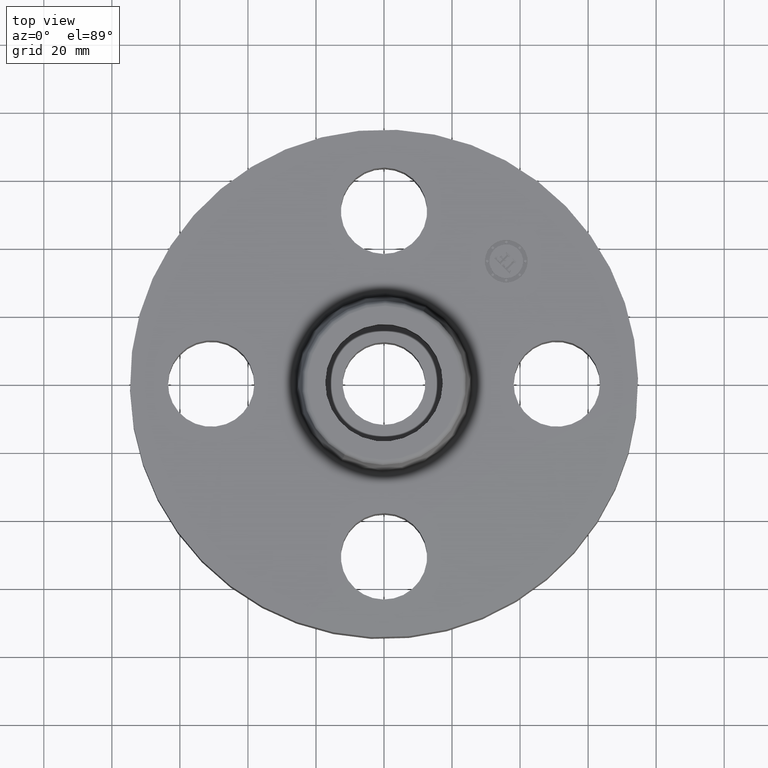
[diagram: clean part render]
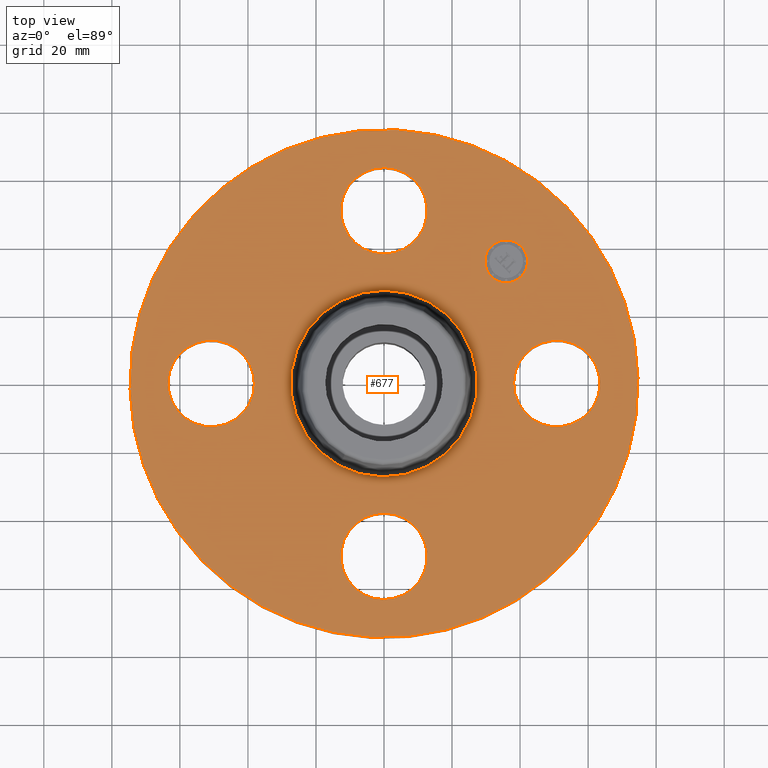
[diagram: same view with one face highlighted and labeled with its STEP entity id]
A machine part, top view. The second image highlights one B-rep face of the part: STEP entity #677.
In plain terms, the highlighted planar face has unit normal (0, 0, -1).
Its self-contained STEP definition (entity closure, byte-faithful):
#38=AXIS2_PLACEMENT_3D('Plane Axis2P3D',#35,#36,#37) ;
#234=AXIS2_PLACEMENT_3D('Circle Axis2P3D',#232,#233,$) ;
#253=AXIS2_PLACEMENT_3D('Circle Axis2P3D',#251,#252,$) ;
#270=AXIS2_PLACEMENT_3D('Circle Axis2P3D',#268,#269,$) ;
#305=AXIS2_PLACEMENT_3D('Circle Axis2P3D',#303,#304,$) ;
#455=AXIS2_PLACEMENT_3D('Circle Axis2P3D',#453,#454,$) ;
#467=AXIS2_PLACEMENT_3D('Circle Axis2P3D',#465,#466,$) ;
#498=AXIS2_PLACEMENT_3D('Circle Axis2P3D',#496,#497,$) ;
#510=AXIS2_PLACEMENT_3D('Circle Axis2P3D',#508,#509,$) ;
#541=AXIS2_PLACEMENT_3D('Circle Axis2P3D',#539,#540,$) ;
#553=AXIS2_PLACEMENT_3D('Circle Axis2P3D',#551,#552,$) ;
#584=AXIS2_PLACEMENT_3D('Circle Axis2P3D',#582,#583,$) ;
#596=AXIS2_PLACEMENT_3D('Circle Axis2P3D',#594,#595,$) ;
#661=AXIS2_PLACEMENT_3D('Circle Axis2P3D',#659,#660,$) ;
#670=AXIS2_PLACEMENT_3D('Circle Axis2P3D',#668,#669,$) ;
#35=CARTESIAN_POINT('Axis2P3D Location',(0.,2.94000000001,1.12)) ;
#229=CARTESIAN_POINT('Vertex',(-1.4095110835,-2.58009273197,1.12)) ;
#232=CARTESIAN_POINT('Axis2P3D Location',(0.,0.,1.12)) ;
#236=CARTESIAN_POINT('Vertex',(1.4095110835,2.58009273197,1.12)) ;
#251=CARTESIAN_POINT('Axis2P3D Location',(0.,0.,1.12)) ;
#268=CARTESIAN_POINT('Axis2P3D Location',(0.,0.,1.12)) ;
#272=CARTESIAN_POINT('Vertex',(0.517945452322,0.948092790991,1.12)) ;
#274=CARTESIAN_POINT('Vertex',(-0.517945452322,-0.948092790991,1.12)) ;
#303=CARTESIAN_POINT('Axis2P3D Location',(0.,0.,1.12)) ;
#443=CARTESIAN_POINT('Vertex',(0.239712769303,2.43879128095,1.12)) ;
#450=CARTESIAN_POINT('Vertex',(-0.239712769303,1.56120871906,1.12)) ;
#453=CARTESIAN_POINT('Axis2P3D Location',(-3.67394039746E-016,2.00000000001,1.12)) ;
#465=CARTESIAN_POINT('Axis2P3D Location',(-3.67394039746E-016,2.00000000001,1.12)) ;
#486=CARTESIAN_POINT('Vertex',(-2.43879128095,0.239712769303,1.12)) ;
#493=CARTESIAN_POINT('Vertex',(-1.56120871906,-0.239712769303,1.12)) ;
#496=CARTESIAN_POINT('Axis2P3D Location',(-2.00000000001,-2.4492935983E-016,1.12)) ;
#508=CARTESIAN_POINT('Axis2P3D Location',(-2.00000000001,-2.4492935983E-016,1.12)) ;
#529=CARTESIAN_POINT('Vertex',(-0.239712769303,-2.43879128095,1.12)) ;
#536=CARTESIAN_POINT('Vertex',(0.239712769303,-1.56120871906,1.12)) ;
#539=CARTESIAN_POINT('Axis2P3D Location',(1.22464679915E-016,-2.00000000001,1.12)) ;
#551=CARTESIAN_POINT('Axis2P3D Location',(1.22464679915E-016,-2.00000000001,1.12)) ;
#572=CARTESIAN_POINT('Vertex',(1.56120871906,0.239712769303,1.12)) ;
#579=CARTESIAN_POINT('Vertex',(2.43879128095,-0.239712769303,1.12)) ;
#582=CARTESIAN_POINT('Axis2P3D Location',(2.00000000001,0.,1.12)) ;
#594=CARTESIAN_POINT('Axis2P3D Location',(2.00000000001,0.,1.12)) ;
#659=CARTESIAN_POINT('Axis2P3D Location',(1.41421356238,1.41421356238,1.12)) ;
#663=CARTESIAN_POINT('Vertex',(1.23920463403,1.58922249072,1.12)) ;
#665=CARTESIAN_POINT('Vertex',(1.58922249072,1.23920463403,1.12)) ;
#668=CARTESIAN_POINT('Axis2P3D Location',(1.41421356238,1.41421356238,1.12)) ;
#36=DIRECTION('Axis2P3D Direction',(0.,0.,-0.0393700787402)) ;
#37=DIRECTION('Axis2P3D XDirection',(0.0393700787402,0.,0.)) ;
#233=DIRECTION('Axis2P3D Direction',(0.,0.,-0.0393700787402)) ;
#252=DIRECTION('Axis2P3D Direction',(0.,0.,-0.0393700787402)) ;
#269=DIRECTION('Axis2P3D Direction',(0.,0.,-0.0393700787402)) ;
#304=DIRECTION('Axis2P3D Direction',(0.,0.,-0.0393700787402)) ;
#454=DIRECTION('Axis2P3D Direction',(0.,0.,-0.0393700787402)) ;
#466=DIRECTION('Axis2P3D Direction',(0.,0.,-0.0393700787402)) ;
#497=DIRECTION('Axis2P3D Direction',(-0.,0.,-0.0393700787402)) ;
#509=DIRECTION('Axis2P3D Direction',(-0.,0.,-0.0393700787402)) ;
#540=DIRECTION('Axis2P3D Direction',(0.,-0.,-0.0393700787402)) ;
#552=DIRECTION('Axis2P3D Direction',(0.,-0.,-0.0393700787402)) ;
#583=DIRECTION('Axis2P3D Direction',(0.,-0.,-0.0393700787402)) ;
#595=DIRECTION('Axis2P3D Direction',(0.,-0.,-0.0393700787402)) ;
#660=DIRECTION('Axis2P3D Direction',(0.,0.,-0.0393700787402)) ;
#669=DIRECTION('Axis2P3D Direction',(0.,0.,-0.0393700787402)) ;
#636=ORIENTED_EDGE('',*,*,#255,.F.) ;
#637=ORIENTED_EDGE('',*,*,#238,.F.) ;
#640=ORIENTED_EDGE('',*,*,#586,.T.) ;
#641=ORIENTED_EDGE('',*,*,#598,.T.) ;
#644=ORIENTED_EDGE('',*,*,#307,.T.) ;
#645=ORIENTED_EDGE('',*,*,#276,.T.) ;
#648=ORIENTED_EDGE('',*,*,#543,.T.) ;
#649=ORIENTED_EDGE('',*,*,#555,.T.) ;
#652=ORIENTED_EDGE('',*,*,#500,.T.) ;
#653=ORIENTED_EDGE('',*,*,#512,.T.) ;
#656=ORIENTED_EDGE('',*,*,#457,.T.) ;
#657=ORIENTED_EDGE('',*,*,#469,.T.) ;
#674=ORIENTED_EDGE('',*,*,#667,.T.) ;
#675=ORIENTED_EDGE('',*,*,#672,.T.) ;
#642=FACE_BOUND('',#639,.T.) ;
#646=FACE_BOUND('',#643,.T.) ;
#650=FACE_BOUND('',#647,.T.) ;
#654=FACE_BOUND('',#651,.T.) ;
#658=FACE_BOUND('',#655,.T.) ;
#676=FACE_BOUND('',#673,.T.) ;
#677=ADVANCED_FACE('PartBody',(#638,#642,#646,#650,#654,#658,#676),#39,.F.) ;
#235=CIRCLE('generated circle',#234,2.94000000001) ;
#254=CIRCLE('generated circle',#253,2.94000000001) ;
#271=CIRCLE('generated circle',#270,1.08034597787) ;
#306=CIRCLE('generated circle',#305,1.08034597787) ;
#456=CIRCLE('generated circle',#455,0.500000000002) ;
#468=CIRCLE('generated circle',#467,0.500000000002) ;
#499=CIRCLE('generated circle',#498,0.500000000002) ;
#511=CIRCLE('generated circle',#510,0.500000000002) ;
#542=CIRCLE('generated circle',#541,0.500000000002) ;
#554=CIRCLE('generated circle',#553,0.500000000002) ;
#585=CIRCLE('generated circle',#584,0.500000000002) ;
#597=CIRCLE('generated circle',#596,0.500000000002) ;
#662=CIRCLE('generated circle',#661,0.247500000001) ;
#671=CIRCLE('generated circle',#670,0.247500000001) ;
#238=EDGE_CURVE('',#230,#237,#235,.T.) ;
#255=EDGE_CURVE('',#237,#230,#254,.T.) ;
#276=EDGE_CURVE('',#273,#275,#271,.T.) ;
#307=EDGE_CURVE('',#275,#273,#306,.T.) ;
#457=EDGE_CURVE('',#444,#451,#456,.T.) ;
#469=EDGE_CURVE('',#451,#444,#468,.T.) ;
#500=EDGE_CURVE('',#487,#494,#499,.T.) ;
#512=EDGE_CURVE('',#494,#487,#511,.T.) ;
#543=EDGE_CURVE('',#530,#537,#542,.T.) ;
#555=EDGE_CURVE('',#537,#530,#554,.T.) ;
#586=EDGE_CURVE('',#573,#580,#585,.T.) ;
#598=EDGE_CURVE('',#580,#573,#597,.T.) ;
#667=EDGE_CURVE('',#664,#666,#662,.T.) ;
#672=EDGE_CURVE('',#666,#664,#671,.T.) ;
#635=EDGE_LOOP('',(#636,#637)) ;
#639=EDGE_LOOP('',(#640,#641)) ;
#643=EDGE_LOOP('',(#644,#645)) ;
#647=EDGE_LOOP('',(#648,#649)) ;
#651=EDGE_LOOP('',(#652,#653)) ;
#655=EDGE_LOOP('',(#656,#657)) ;
#673=EDGE_LOOP('',(#674,#675)) ;
#638=FACE_OUTER_BOUND('',#635,.T.) ;
#39=PLANE('',#38) ;
#230=VERTEX_POINT('',#229) ;
#237=VERTEX_POINT('',#236) ;
#273=VERTEX_POINT('',#272) ;
#275=VERTEX_POINT('',#274) ;
#444=VERTEX_POINT('',#443) ;
#451=VERTEX_POINT('',#450) ;
#487=VERTEX_POINT('',#486) ;
#494=VERTEX_POINT('',#493) ;
#530=VERTEX_POINT('',#529) ;
#537=VERTEX_POINT('',#536) ;
#573=VERTEX_POINT('',#572) ;
#580=VERTEX_POINT('',#579) ;
#664=VERTEX_POINT('',#663) ;
#666=VERTEX_POINT('',#665) ;